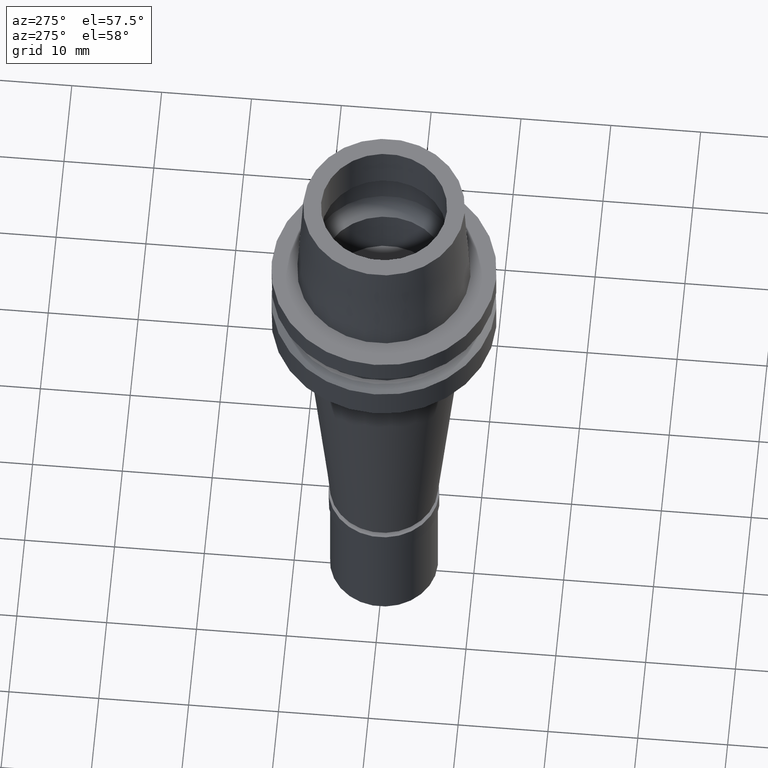
[diagram: clean part render]
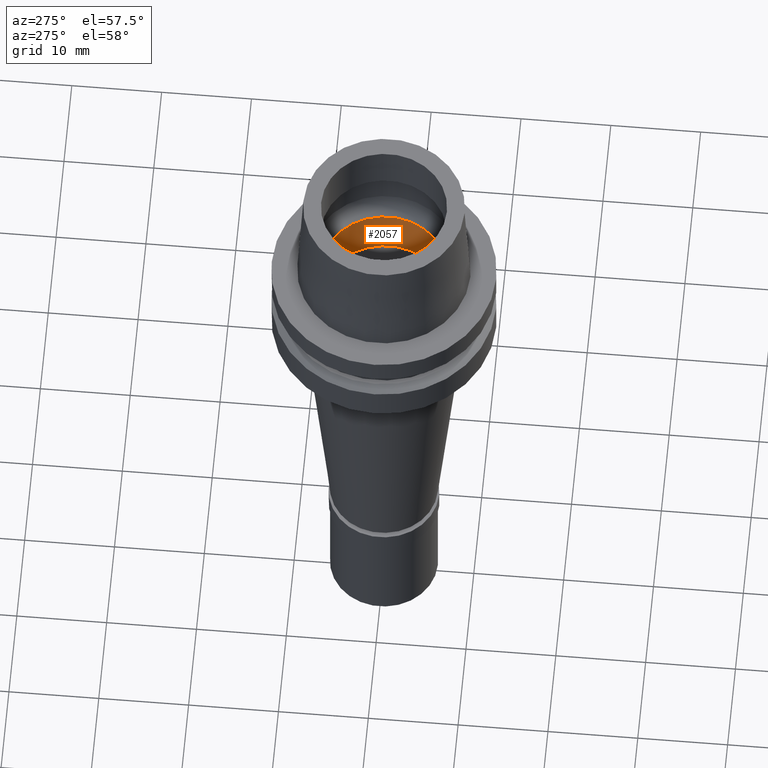
[diagram: same view with one face highlighted and labeled with its STEP entity id]
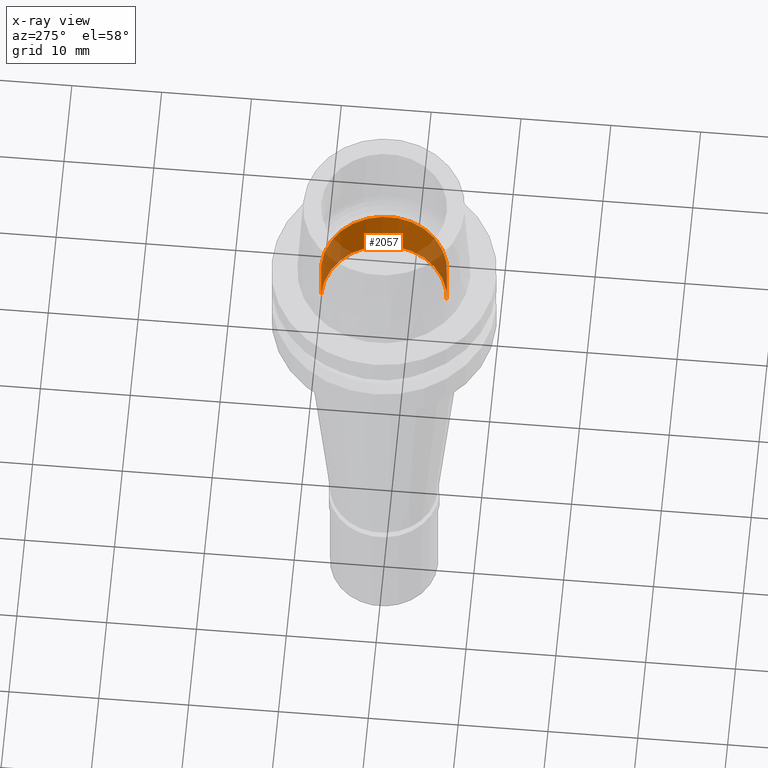
[diagram: x-ray of the same camera — body ghosted, the highlighted face saturated]
A machine part, auxiliary view. The second image highlights one B-rep face of the part: STEP entity #2057.
The next image is the same camera in x-ray: the body ghosted, the highlighted face saturated — about 33% of this face is hidden behind the body in this view.
In plain terms, the highlighted cylindrical surface (partial cylindrical patch) has radius 7 mm, axis along (0, 0, 1).
Its self-contained STEP definition (entity closure, byte-faithful):
#59 = ORIENTED_EDGE ( 'NONE', *, *, #809, .T. ) ;
#104 = DIRECTION ( 'NONE',  ( 0.0000000000000000000, 0.0000000000000000000, 1.000000000000000000 ) ) ;
#208 = DIRECTION ( 'NONE',  ( 0.0000000000000000000, 0.0000000000000000000, 1.000000000000000000 ) ) ;
#285 = AXIS2_PLACEMENT_3D ( 'NONE', #2437, #104, #765 ) ;
#318 = DIRECTION ( 'NONE',  ( 0.0000000000000000000, 0.0000000000000000000, 1.000000000000000000 ) ) ;
#436 = EDGE_CURVE ( 'NONE', #1581, #1579, #1797, .T. ) ;
#451 = CIRCLE ( 'NONE', #839, 7.000000000000000000 ) ;
#520 = DIRECTION ( 'NONE',  ( 0.0000000000000000000, 0.0000000000000000000, -1.000000000000000000 ) ) ;
#613 = DIRECTION ( 'NONE',  ( 0.0000000000000000000, -1.000000000000000000, 0.0000000000000000000 ) ) ;
#765 = DIRECTION ( 'NONE',  ( 0.0000000000000000000, 1.000000000000000000, 0.0000000000000000000 ) ) ;
#778 = CYLINDRICAL_SURFACE ( 'NONE', #285, 7.000000000000000000 ) ;
#809 = EDGE_CURVE ( 'NONE', #2636, #1426, #451, .T. ) ;
#822 = DIRECTION ( 'NONE',  ( 0.0000000000000000000, 0.0000000000000000000, 1.000000000000000000 ) ) ;
#839 = AXIS2_PLACEMENT_3D ( 'NONE', #1250, #208, #613 ) ;
#902 = CARTESIAN_POINT ( 'NONE',  ( 0.0000000000000000000, -7.000000000000000000, 0.0000000000000000000 ) ) ;
#1024 = VECTOR ( 'NONE', #822, 1000.000000000000000 ) ;
#1059 = ORIENTED_EDGE ( 'NONE', *, *, #1237, .T. ) ;
#1156 = VECTOR ( 'NONE', #318, 1000.000000000000000 ) ;
#1220 = EDGE_CURVE ( 'NONE', #1581, #1426, #1556, .T. ) ;
#1237 = EDGE_CURVE ( 'NONE', #1579, #2636, #1431, .T. ) ;
#1250 = CARTESIAN_POINT ( 'NONE',  ( 0.0000000000000000000, 0.0000000000000000000, 1.421085471519999843E-14 ) ) ;
#1268 = CARTESIAN_POINT ( 'NONE',  ( 0.0000000000000000000, 7.000000000000000000, -5.950000000000000178 ) ) ;
#1349 = DIRECTION ( 'NONE',  ( 0.0000000000000000000, 1.000000000000000000, 0.0000000000000000000 ) ) ;
#1422 = EDGE_LOOP ( 'NONE', ( #1899, #1059, #59, #1444 ) ) ;
#1426 = VERTEX_POINT ( 'NONE', #2462 ) ;
#1431 = LINE ( 'NONE', #2252, #1024 ) ;
#1444 = ORIENTED_EDGE ( 'NONE', *, *, #1220, .F. ) ;
#1556 = LINE ( 'NONE', #2186, #1156 ) ;
#1579 = VERTEX_POINT ( 'NONE', #1688 ) ;
#1581 = VERTEX_POINT ( 'NONE', #1268 ) ;
#1596 = FACE_OUTER_BOUND ( 'NONE', #1422, .T. ) ;
#1688 = CARTESIAN_POINT ( 'NONE',  ( 0.0000000000000000000, -7.000000000000000000, -5.950000000000000178 ) ) ;
#1797 = CIRCLE ( 'NONE', #1836, 7.000000000000000000 ) ;
#1836 = AXIS2_PLACEMENT_3D ( 'NONE', #2368, #520, #1349 ) ;
#1899 = ORIENTED_EDGE ( 'NONE', *, *, #436, .T. ) ;
#2057 = ADVANCED_FACE ( 'NONE', ( #1596 ), #778, .F. ) ;
#2186 = CARTESIAN_POINT ( 'NONE',  ( 0.0000000000000000000, 7.000000000000000000, -5.950000000000000178 ) ) ;
#2252 = CARTESIAN_POINT ( 'NONE',  ( 0.0000000000000000000, -7.000000000000000000, -5.950000000000000178 ) ) ;
#2368 = CARTESIAN_POINT ( 'NONE',  ( 0.0000000000000000000, 0.0000000000000000000, -5.950000000000000178 ) ) ;
#2437 = CARTESIAN_POINT ( 'NONE',  ( 0.0000000000000000000, 0.0000000000000000000, -59.45000000000000284 ) ) ;
#2462 = CARTESIAN_POINT ( 'NONE',  ( 0.0000000000000000000, 7.000000000000000000, 0.0000000000000000000 ) ) ;
#2636 = VERTEX_POINT ( 'NONE', #902 ) ;